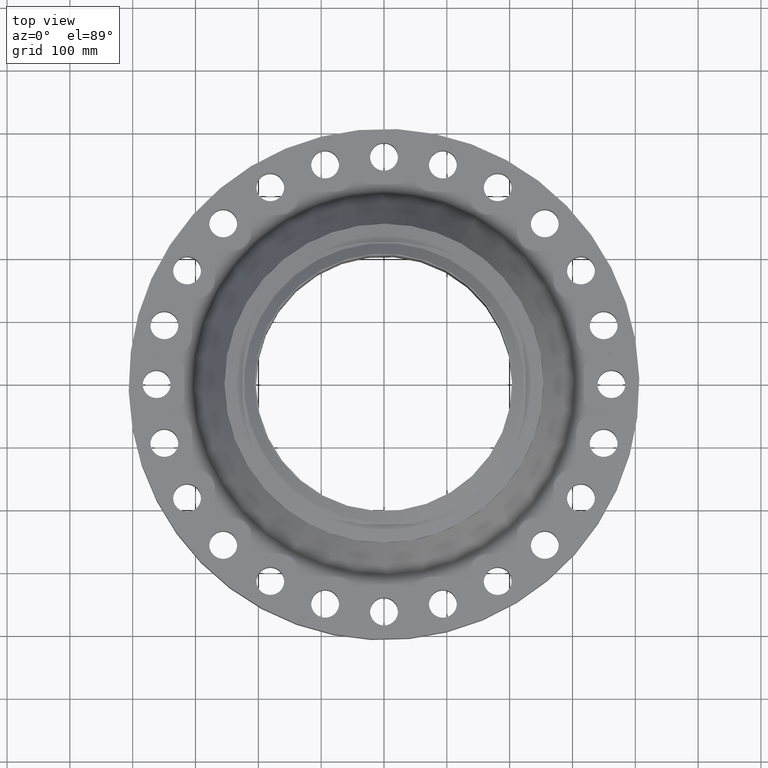
[diagram: clean part render]
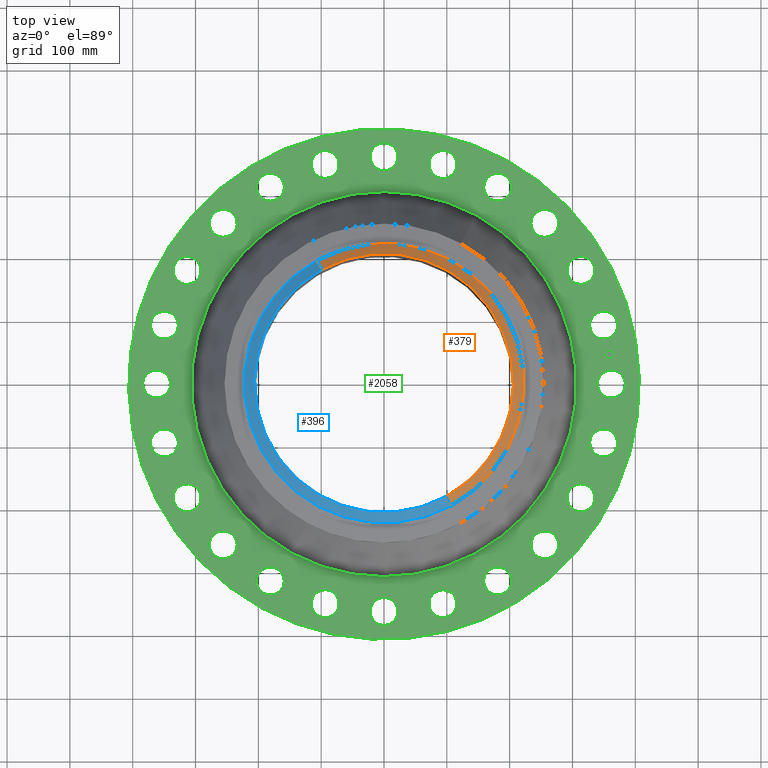
[diagram: same view with three faces highlighted in distinct colors, each labeled with its STEP entity id]
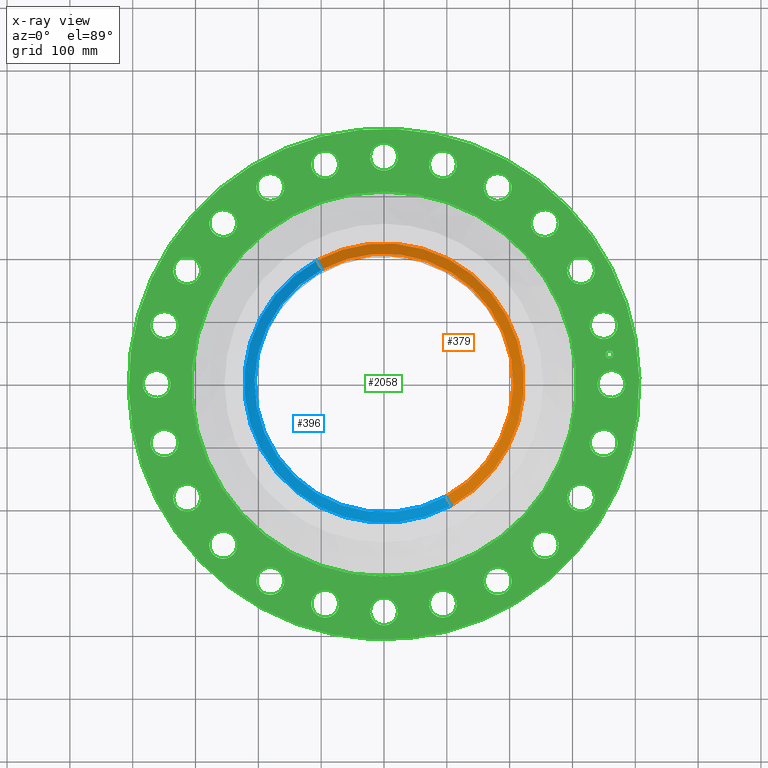
[diagram: x-ray of the same camera — body ghosted, the three highlighted faces saturated]
A machine part, top view with three faces highlighted in distinct colors.
The next image is the same camera in x-ray (body ghosted, the three faces saturated) — at least one of them is partly hidden behind the body in this view.
Their STEP definitions:

[orange] entity #379 — the highlighted conical surface has half-angle 52.5 deg.
#343=AXIS2_PLACEMENT_3D('Cone Axis2P3D',#340,#341,#342) ;
#347=AXIS2_PLACEMENT_3D('Circle Axis2P3D',#345,#346,$) ;
#363=AXIS2_PLACEMENT_3D('Circle Axis2P3D',#361,#362,$) ;
#340=CARTESIAN_POINT('Axis2P3D Location',(0.,0.,7.50000000003)) ;
#345=CARTESIAN_POINT('Axis2P3D Location',(0.,0.,7.50000000003)) ;
#349=CARTESIAN_POINT('Vertex',(3.88801654296,-7.11696654369,7.50000000003)) ;
#351=CARTESIAN_POINT('Vertex',(-3.88801654296,7.11696654369,7.50000000003)) ;
#354=CARTESIAN_POINT('Line Origine',(4.04295784551,-7.4005846956,7.25201437259)) ;
#358=CARTESIAN_POINT('Vertex',(4.19789914806,-7.6842028475,7.00402874516)) ;
#361=CARTESIAN_POINT('Axis2P3D Location',(0.,0.,7.00402874516)) ;
#365=CARTESIAN_POINT('Vertex',(-4.19789914806,7.6842028475,7.00402874516)) ;
#368=CARTESIAN_POINT('Line Origine',(-4.04295784551,7.4005846956,7.25201437259)) ;
#341=DIRECTION('Axis2P3D Direction',(-0.,-0.,-0.0393700787402)) ;
#342=DIRECTION('Axis2P3D XDirection',(0.0188750212049,-0.0345504945626,0.)) ;
#346=DIRECTION('Axis2P3D Direction',(0.,0.,-0.0393700787402)) ;
#355=DIRECTION('Vector Direction',(0.014974561121,-0.02741075027,-0.023966985394)) ;
#362=DIRECTION('Axis2P3D Direction',(0.,0.,-0.0393700787402)) ;
#369=DIRECTION('Vector Direction',(-0.014974561121,0.02741075027,-0.023966985394)) ;
#356=VECTOR('Line Direction',#355,0.0393700787402) ;
#370=VECTOR('Line Direction',#369,0.0393700787402) ;
#374=ORIENTED_EDGE('',*,*,#353,.F.) ;
#375=ORIENTED_EDGE('',*,*,#360,.T.) ;
#376=ORIENTED_EDGE('',*,*,#367,.T.) ;
#377=ORIENTED_EDGE('',*,*,#372,.F.) ;
#379=ADVANCED_FACE('PartBody',(#378),#344,.T.) ;
#348=CIRCLE('generated circle',#347,8.10974015751) ;
#364=CIRCLE('generated circle',#363,8.75610248106) ;
#344=CONICAL_SURFACE('Cone',#343,8.10974015751,0.916297857297) ;
#353=EDGE_CURVE('',#350,#352,#348,.F.) ;
#360=EDGE_CURVE('',#350,#359,#357,.T.) ;
#367=EDGE_CURVE('',#359,#366,#364,.F.) ;
#372=EDGE_CURVE('',#352,#366,#371,.T.) ;
#373=EDGE_LOOP('',(#374,#375,#376,#377)) ;
#378=FACE_OUTER_BOUND('',#373,.T.) ;
#357=LINE('Line',#354,#356) ;
#371=LINE('Line',#368,#370) ;
#350=VERTEX_POINT('',#349) ;
#352=VERTEX_POINT('',#351) ;
#359=VERTEX_POINT('',#358) ;
#366=VERTEX_POINT('',#365) ;

[blue] entity #396 — the highlighted conical surface has half-angle 52.5 deg.
#343=AXIS2_PLACEMENT_3D('Cone Axis2P3D',#340,#341,#342) ;
#382=AXIS2_PLACEMENT_3D('Circle Axis2P3D',#380,#381,$) ;
#387=AXIS2_PLACEMENT_3D('Circle Axis2P3D',#385,#386,$) ;
#340=CARTESIAN_POINT('Axis2P3D Location',(0.,0.,7.50000000003)) ;
#349=CARTESIAN_POINT('Vertex',(3.88801654296,-7.11696654369,7.50000000003)) ;
#351=CARTESIAN_POINT('Vertex',(-3.88801654296,7.11696654369,7.50000000003)) ;
#354=CARTESIAN_POINT('Line Origine',(4.04295784551,-7.4005846956,7.25201437259)) ;
#358=CARTESIAN_POINT('Vertex',(4.19789914806,-7.6842028475,7.00402874516)) ;
#365=CARTESIAN_POINT('Vertex',(-4.19789914806,7.6842028475,7.00402874516)) ;
#368=CARTESIAN_POINT('Line Origine',(-4.04295784551,7.4005846956,7.25201437259)) ;
#380=CARTESIAN_POINT('Axis2P3D Location',(0.,0.,7.50000000003)) ;
#385=CARTESIAN_POINT('Axis2P3D Location',(0.,0.,7.00402874516)) ;
#341=DIRECTION('Axis2P3D Direction',(-0.,-0.,-0.0393700787402)) ;
#342=DIRECTION('Axis2P3D XDirection',(0.0188750212049,-0.0345504945626,0.)) ;
#355=DIRECTION('Vector Direction',(0.014974561121,-0.02741075027,-0.023966985394)) ;
#369=DIRECTION('Vector Direction',(-0.014974561121,0.02741075027,-0.023966985394)) ;
#381=DIRECTION('Axis2P3D Direction',(0.,0.,-0.0393700787402)) ;
#386=DIRECTION('Axis2P3D Direction',(0.,0.,-0.0393700787402)) ;
#356=VECTOR('Line Direction',#355,0.0393700787402) ;
#370=VECTOR('Line Direction',#369,0.0393700787402) ;
#391=ORIENTED_EDGE('',*,*,#384,.F.) ;
#392=ORIENTED_EDGE('',*,*,#372,.T.) ;
#393=ORIENTED_EDGE('',*,*,#389,.T.) ;
#394=ORIENTED_EDGE('',*,*,#360,.F.) ;
#396=ADVANCED_FACE('PartBody',(#395),#344,.T.) ;
#383=CIRCLE('generated circle',#382,8.10974015751) ;
#388=CIRCLE('generated circle',#387,8.75610248106) ;
#344=CONICAL_SURFACE('Cone',#343,8.10974015751,0.916297857297) ;
#360=EDGE_CURVE('',#350,#359,#357,.T.) ;
#372=EDGE_CURVE('',#352,#366,#371,.T.) ;
#384=EDGE_CURVE('',#352,#350,#383,.F.) ;
#389=EDGE_CURVE('',#366,#359,#388,.F.) ;
#390=EDGE_LOOP('',(#391,#392,#393,#394)) ;
#395=FACE_OUTER_BOUND('',#390,.T.) ;
#357=LINE('Line',#354,#356) ;
#371=LINE('Line',#368,#370) ;
#350=VERTEX_POINT('',#349) ;
#352=VERTEX_POINT('',#351) ;
#359=VERTEX_POINT('',#358) ;
#366=VERTEX_POINT('',#365) ;

[green] entity #2058 — the highlighted planar face has unit normal (0, 0, -1).
#65=AXIS2_PLACEMENT_3D('Circle Axis2P3D',#63,#64,$) ;
#82=AXIS2_PLACEMENT_3D('Circle Axis2P3D',#80,#81,$) ;
#115=AXIS2_PLACEMENT_3D('Circle Axis2P3D',#113,#114,$) ;
#139=AXIS2_PLACEMENT_3D('Circle Axis2P3D',#137,#138,$) ;
#156=AXIS2_PLACEMENT_3D('Circle Axis2P3D',#154,#155,$) ;
#191=AXIS2_PLACEMENT_3D('Circle Axis2P3D',#189,#190,$) ;
#963=AXIS2_PLACEMENT_3D('Circle Axis2P3D',#961,#962,$) ;
#975=AXIS2_PLACEMENT_3D('Circle Axis2P3D',#973,#974,$) ;
#1006=AXIS2_PLACEMENT_3D('Circle Axis2P3D',#1004,#1005,$) ;
#1018=AXIS2_PLACEMENT_3D('Circle Axis2P3D',#1016,#1017,$) ;
#1049=AXIS2_PLACEMENT_3D('Circle Axis2P3D',#1047,#1048,$) ;
#1061=AXIS2_PLACEMENT_3D('Circle Axis2P3D',#1059,#1060,$) ;
#1092=AXIS2_PLACEMENT_3D('Circle Axis2P3D',#1090,#1091,$) ;
#1104=AXIS2_PLACEMENT_3D('Circle Axis2P3D',#1102,#1103,$) ;
#1135=AXIS2_PLACEMENT_3D('Circle Axis2P3D',#1133,#1134,$) ;
#1147=AXIS2_PLACEMENT_3D('Circle Axis2P3D',#1145,#1146,$) ;
#1178=AXIS2_PLACEMENT_3D('Circle Axis2P3D',#1176,#1177,$) ;
#1190=AXIS2_PLACEMENT_3D('Circle Axis2P3D',#1188,#1189,$) ;
#1221=AXIS2_PLACEMENT_3D('Circle Axis2P3D',#1219,#1220,$) ;
#1233=AXIS2_PLACEMENT_3D('Circle Axis2P3D',#1231,#1232,$) ;
#1264=AXIS2_PLACEMENT_3D('Circle Axis2P3D',#1262,#1263,$) ;
#1276=AXIS2_PLACEMENT_3D('Circle Axis2P3D',#1274,#1275,$) ;
#1307=AXIS2_PLACEMENT_3D('Circle Axis2P3D',#1305,#1306,$) ;
#1319=AXIS2_PLACEMENT_3D('Circle Axis2P3D',#1317,#1318,$) ;
#1350=AXIS2_PLACEMENT_3D('Circle Axis2P3D',#1348,#1349,$) ;
#1362=AXIS2_PLACEMENT_3D('Circle Axis2P3D',#1360,#1361,$) ;
#1393=AXIS2_PLACEMENT_3D('Circle Axis2P3D',#1391,#1392,$) ;
#1405=AXIS2_PLACEMENT_3D('Circle Axis2P3D',#1403,#1404,$) ;
#1436=AXIS2_PLACEMENT_3D('Circle Axis2P3D',#1434,#1435,$) ;
#1448=AXIS2_PLACEMENT_3D('Circle Axis2P3D',#1446,#1447,$) ;
#1479=AXIS2_PLACEMENT_3D('Circle Axis2P3D',#1477,#1478,$) ;
#1491=AXIS2_PLACEMENT_3D('Circle Axis2P3D',#1489,#1490,$) ;
#1522=AXIS2_PLACEMENT_3D('Circle Axis2P3D',#1520,#1521,$) ;
#1534=AXIS2_PLACEMENT_3D('Circle Axis2P3D',#1532,#1533,$) ;
#1565=AXIS2_PLACEMENT_3D('Circle Axis2P3D',#1563,#1564,$) ;
#1577=AXIS2_PLACEMENT_3D('Circle Axis2P3D',#1575,#1576,$) ;
#1608=AXIS2_PLACEMENT_3D('Circle Axis2P3D',#1606,#1607,$) ;
#1620=AXIS2_PLACEMENT_3D('Circle Axis2P3D',#1618,#1619,$) ;
#1651=AXIS2_PLACEMENT_3D('Circle Axis2P3D',#1649,#1650,$) ;
#1663=AXIS2_PLACEMENT_3D('Circle Axis2P3D',#1661,#1662,$) ;
#1694=AXIS2_PLACEMENT_3D('Circle Axis2P3D',#1692,#1693,$) ;
#1706=AXIS2_PLACEMENT_3D('Circle Axis2P3D',#1704,#1705,$) ;
#1737=AXIS2_PLACEMENT_3D('Circle Axis2P3D',#1735,#1736,$) ;
#1749=AXIS2_PLACEMENT_3D('Circle Axis2P3D',#1747,#1748,$) ;
#1780=AXIS2_PLACEMENT_3D('Circle Axis2P3D',#1778,#1779,$) ;
#1792=AXIS2_PLACEMENT_3D('Circle Axis2P3D',#1790,#1791,$) ;
#1823=AXIS2_PLACEMENT_3D('Circle Axis2P3D',#1821,#1822,$) ;
#1835=AXIS2_PLACEMENT_3D('Circle Axis2P3D',#1833,#1834,$) ;
#1866=AXIS2_PLACEMENT_3D('Circle Axis2P3D',#1864,#1865,$) ;
#1878=AXIS2_PLACEMENT_3D('Circle Axis2P3D',#1876,#1877,$) ;
#1909=AXIS2_PLACEMENT_3D('Circle Axis2P3D',#1907,#1908,$) ;
#1921=AXIS2_PLACEMENT_3D('Circle Axis2P3D',#1919,#1920,$) ;
#1934=AXIS2_PLACEMENT_3D('Plane Axis2P3D',#1931,#1932,#1933) ;
#2042=AXIS2_PLACEMENT_3D('Circle Axis2P3D',#2040,#2041,$) ;
#2051=AXIS2_PLACEMENT_3D('Circle Axis2P3D',#2049,#2050,$) ;
#46=CARTESIAN_POINT('Vertex',(13.4821152584,0.41949734628,3.50000000001)) ;
#60=CARTESIAN_POINT('Vertex',(15.0178847417,-0.41949734628,3.50000000001)) ;
#63=CARTESIAN_POINT('Axis2P3D Location',(14.2500000001,0.,3.50000000001)) ;
#80=CARTESIAN_POINT('Axis2P3D Location',(14.2500000001,0.,3.50000000001)) ;
#110=CARTESIAN_POINT('Vertex',(-7.6708086177,-14.0413209903,3.50000000001)) ;
#113=CARTESIAN_POINT('Axis2P3D Location',(0.,0.,3.50000000001)) ;
#117=CARTESIAN_POINT('Vertex',(7.6708086177,14.0413209903,3.50000000001)) ;
#137=CARTESIAN_POINT('Axis2P3D Location',(0.,0.,3.50000000001)) ;
#154=CARTESIAN_POINT('Axis2P3D Location',(0.,0.,3.50000000001)) ;
#158=CARTESIAN_POINT('Vertex',(5.78409367127,10.5877124465,3.50000000001)) ;
#160=CARTESIAN_POINT('Vertex',(-5.78409367127,-10.5877124465,3.50000000001)) ;
#189=CARTESIAN_POINT('Axis2P3D Location',(0.,0.,3.50000000001)) ;
#951=CARTESIAN_POINT('Vertex',(-13.1312972237,3.08422487631,3.50000000001)) ;
#958=CARTESIAN_POINT('Vertex',(-14.3975888257,4.29211790914,3.50000000001)) ;
#961=CARTESIAN_POINT('Axis2P3D Location',(-13.7644430247,3.68817139273,3.50000000001)) ;
#973=CARTESIAN_POINT('Axis2P3D Location',(-13.7644430247,3.68817139273,3.50000000001)) ;
#994=CARTESIAN_POINT('Vertex',(11.8856029837,-6.3777622705,3.50000000001)) ;
#1001=CARTESIAN_POINT('Vertex',(12.7961210243,-7.87223772956,3.50000000001)) ;
#1004=CARTESIAN_POINT('Axis2P3D Location',(12.340862004,-7.12500000003,3.50000000001)) ;
#1016=CARTESIAN_POINT('Axis2P3D Location',(12.340862004,-7.12500000003,3.50000000001)) ;
#1037=CARTESIAN_POINT('Vertex',(-11.8856029837,6.3777622705,3.50000000001)) ;
#1044=CARTESIAN_POINT('Vertex',(-12.7961210243,7.87223772956,3.50000000001)) ;
#1047=CARTESIAN_POINT('Axis2P3D Location',(-12.340862004,7.12500000003,3.50000000001)) ;
#1059=CARTESIAN_POINT('Axis2P3D Location',(-12.340862004,7.12500000003,3.50000000001)) ;
#1080=CARTESIAN_POINT('Vertex',(9.8299245422,-9.23666570571,3.50000000001)) ;
#1087=CARTESIAN_POINT('Vertex',(10.3226187217,-10.9158775582,3.50000000001)) ;
#1090=CARTESIAN_POINT('Axis2P3D Location',(10.0762716319,-10.0762716319,3.50000000001)) ;
#1102=CARTESIAN_POINT('Axis2P3D Location',(10.0762716319,-10.0762716319,3.50000000001)) ;
#1123=CARTESIAN_POINT('Vertex',(-9.8299245422,9.23666570571,3.50000000001)) ;
#1130=CARTESIAN_POINT('Vertex',(-10.3226187217,10.9158775582,3.50000000001)) ;
#1133=CARTESIAN_POINT('Axis2P3D Location',(-10.0762716319,10.0762716319,3.50000000001)) ;
#1145=CARTESIAN_POINT('Axis2P3D Location',(-10.0762716319,10.0762716319,3.50000000001)) ;
#1166=CARTESIAN_POINT('Vertex',(7.1043529879,-11.4661056374,3.50000000001)) ;
#1173=CARTESIAN_POINT('Vertex',(7.14564701216,-13.2156183706,3.50000000001)) ;
#1176=CARTESIAN_POINT('Axis2P3D Location',(7.12500000003,-12.340862004,3.50000000001)) ;
#1188=CARTESIAN_POINT('Axis2P3D Location',(7.12500000003,-12.340862004,3.50000000001)) ;
#1209=CARTESIAN_POINT('Vertex',(-7.1043529879,11.4661056374,3.50000000001)) ;
#1216=CARTESIAN_POINT('Vertex',(-7.14564701216,13.2156183706,3.50000000001)) ;
#1219=CARTESIAN_POINT('Axis2P3D Location',(-7.12500000003,12.340862004,3.50000000001)) ;
#1231=CARTESIAN_POINT('Axis2P3D Location',(-7.12500000003,12.340862004,3.50000000001)) ;
#1252=CARTESIAN_POINT('Vertex',(3.89463151797,-12.9141494185,3.50000000001)) ;
#1259=CARTESIAN_POINT('Vertex',(3.48171126748,-14.6147366308,3.50000000001)) ;
#1262=CARTESIAN_POINT('Axis2P3D Location',(3.68817139273,-13.7644430247,3.50000000001)) ;
#1274=CARTESIAN_POINT('Axis2P3D Location',(3.68817139273,-13.7644430247,3.50000000001)) ;
#1295=CARTESIAN_POINT('Vertex',(-3.89463151797,12.9141494185,3.50000000001)) ;
#1302=CARTESIAN_POINT('Vertex',(-3.48171126748,14.6147366308,3.50000000001)) ;
#1305=CARTESIAN_POINT('Axis2P3D Location',(-3.68817139273,13.7644430247,3.50000000001)) ;
#1317=CARTESIAN_POINT('Axis2P3D Location',(-3.68817139273,13.7644430247,3.50000000001)) ;
#1338=CARTESIAN_POINT('Vertex',(0.41949734628,-13.4821152584,3.50000000001)) ;
#1345=CARTESIAN_POINT('Vertex',(-0.41949734628,-15.0178847417,3.50000000001)) ;
#1348=CARTESIAN_POINT('Axis2P3D Location',(-1.36536903201E-015,-14.2500000001,3.50000000001)) ;
#1360=CARTESIAN_POINT('Axis2P3D Location',(-1.36536903201E-015,-14.2500000001,3.50000000001)) ;
#1381=CARTESIAN_POINT('Vertex',(-0.41949734628,13.4821152584,3.50000000001)) ;
#1388=CARTESIAN_POINT('Vertex',(0.41949734628,15.0178847417,3.50000000001)) ;
#1391=CARTESIAN_POINT('Axis2P3D Location',(-2.61768253319E-015,14.2500000001,3.50000000001)) ;
#1403=CARTESIAN_POINT('Axis2P3D Location',(-2.61768253319E-015,14.2500000001,3.50000000001)) ;
#1424=CARTESIAN_POINT('Vertex',(-3.08422487631,-13.1312972237,3.50000000001)) ;
#1431=CARTESIAN_POINT('Vertex',(-4.29211790914,-14.3975888257,3.50000000001)) ;
#1434=CARTESIAN_POINT('Axis2P3D Location',(-3.68817139273,-13.7644430247,3.50000000001)) ;
#1446=CARTESIAN_POINT('Axis2P3D Location',(-3.68817139273,-13.7644430247,3.50000000001)) ;
#1467=CARTESIAN_POINT('Vertex',(3.08422487631,13.1312972237,3.50000000001)) ;
#1474=CARTESIAN_POINT('Vertex',(4.29211790914,14.3975888257,3.50000000001)) ;
#1477=CARTESIAN_POINT('Axis2P3D Location',(3.68817139273,13.7644430247,3.50000000001)) ;
#1489=CARTESIAN_POINT('Axis2P3D Location',(3.68817139273,13.7644430247,3.50000000001)) ;
#1510=CARTESIAN_POINT('Vertex',(-6.3777622705,-11.8856029837,3.50000000001)) ;
#1517=CARTESIAN_POINT('Vertex',(-7.87223772956,-12.7961210243,3.50000000001)) ;
#1520=CARTESIAN_POINT('Axis2P3D Location',(-7.12500000003,-12.340862004,3.50000000001)) ;
#1532=CARTESIAN_POINT('Axis2P3D Location',(-7.12500000003,-12.340862004,3.50000000001)) ;
#1553=CARTESIAN_POINT('Vertex',(6.3777622705,11.8856029837,3.50000000001)) ;
#1560=CARTESIAN_POINT('Vertex',(7.87223772956,12.7961210243,3.50000000001)) ;
#1563=CARTESIAN_POINT('Axis2P3D Location',(7.12500000003,12.340862004,3.50000000001)) ;
#1575=CARTESIAN_POINT('Axis2P3D Location',(7.12500000003,12.340862004,3.50000000001)) ;
#1596=CARTESIAN_POINT('Vertex',(-9.23666570571,-9.8299245422,3.50000000001)) ;
#1603=CARTESIAN_POINT('Vertex',(-10.9158775582,-10.3226187217,3.50000000001)) ;
#1606=CARTESIAN_POINT('Axis2P3D Location',(-10.0762716319,-10.0762716319,3.50000000001)) ;
#1618=CARTESIAN_POINT('Axis2P3D Location',(-10.0762716319,-10.0762716319,3.50000000001)) ;
#1639=CARTESIAN_POINT('Vertex',(9.23666570571,9.8299245422,3.50000000001)) ;
#1646=CARTESIAN_POINT('Vertex',(10.9158775582,10.3226187217,3.50000000001)) ;
#1649=CARTESIAN_POINT('Axis2P3D Location',(10.0762716319,10.0762716319,3.50000000001)) ;
#1661=CARTESIAN_POINT('Axis2P3D Location',(10.0762716319,10.0762716319,3.50000000001)) ;
#1682=CARTESIAN_POINT('Vertex',(-11.4661056374,-7.1043529879,3.50000000001)) ;
#1689=CARTESIAN_POINT('Vertex',(-13.2156183706,-7.14564701216,3.50000000001)) ;
#1692=CARTESIAN_POINT('Axis2P3D Location',(-12.340862004,-7.12500000003,3.50000000001)) ;
#1704=CARTESIAN_POINT('Axis2P3D Location',(-12.340862004,-7.12500000003,3.50000000001)) ;
#1725=CARTESIAN_POINT('Vertex',(11.4661056374,7.1043529879,3.50000000001)) ;
#1732=CARTESIAN_POINT('Vertex',(13.2156183706,7.14564701216,3.50000000001)) ;
#1735=CARTESIAN_POINT('Axis2P3D Location',(12.340862004,7.12500000003,3.50000000001)) ;
#1747=CARTESIAN_POINT('Axis2P3D Location',(12.340862004,7.12500000003,3.50000000001)) ;
#1768=CARTESIAN_POINT('Vertex',(-12.9141494185,-3.89463151797,3.50000000001)) ;
#1775=CARTESIAN_POINT('Vertex',(-14.6147366308,-3.48171126748,3.50000000001)) ;
#1778=CARTESIAN_POINT('Axis2P3D Location',(-13.7644430247,-3.68817139273,3.50000000001)) ;
#1790=CARTESIAN_POINT('Axis2P3D Location',(-13.7644430247,-3.68817139273,3.50000000001)) ;
#1811=CARTESIAN_POINT('Vertex',(12.9141494185,3.89463151797,3.50000000001)) ;
#1818=CARTESIAN_POINT('Vertex',(14.6147366308,3.48171126748,3.50000000001)) ;
#1821=CARTESIAN_POINT('Axis2P3D Location',(13.7644430247,3.68817139273,3.50000000001)) ;
#1833=CARTESIAN_POINT('Axis2P3D Location',(13.7644430247,3.68817139273,3.50000000001)) ;
#1854=CARTESIAN_POINT('Vertex',(-13.4821152584,-0.41949734628,3.50000000001)) ;
#1861=CARTESIAN_POINT('Vertex',(-15.0178847417,0.41949734628,3.50000000001)) ;
#1864=CARTESIAN_POINT('Axis2P3D Location',(-14.2500000001,-1.74512168879E-015,3.50000000001)) ;
#1876=CARTESIAN_POINT('Axis2P3D Location',(-14.2500000001,-1.74512168879E-015,3.50000000001)) ;
#1897=CARTESIAN_POINT('Vertex',(13.1312972237,-3.08422487631,3.50000000001)) ;
#1904=CARTESIAN_POINT('Vertex',(14.3975888257,-4.29211790914,3.50000000001)) ;
#1907=CARTESIAN_POINT('Axis2P3D Location',(13.7644430247,-3.68817139273,3.50000000001)) ;
#1919=CARTESIAN_POINT('Axis2P3D Location',(13.7644430247,-3.68817139273,3.50000000001)) ;
#1931=CARTESIAN_POINT('Axis2P3D Location',(0.,16.0000000001,3.50000000001)) ;
#2040=CARTESIAN_POINT('Axis2P3D Location',(14.1280892746,1.85999823914,3.50000000001)) ;
#2044=CARTESIAN_POINT('Vertex',(14.0957840421,2.10538084233,3.50000000001)) ;
#2046=CARTESIAN_POINT('Vertex',(14.1603945072,1.61461563595,3.50000000001)) ;
#2049=CARTESIAN_POINT('Axis2P3D Location',(14.1280892746,1.85999823914,3.50000000001)) ;
#64=DIRECTION('Axis2P3D Direction',(0.,-0.,-0.0393700787402)) ;
#81=DIRECTION('Axis2P3D Direction',(0.,-0.,-0.0393700787402)) ;
#114=DIRECTION('Axis2P3D Direction',(0.,0.,-0.0393700787402)) ;
#138=DIRECTION('Axis2P3D Direction',(0.,0.,-0.0393700787402)) ;
#155=DIRECTION('Axis2P3D Direction',(0.,0.,-0.0393700787402)) ;
#190=DIRECTION('Axis2P3D Direction',(0.,0.,-0.0393700787402)) ;
#962=DIRECTION('Axis2P3D Direction',(0.,0.,-0.0393700787402)) ;
#974=DIRECTION('Axis2P3D Direction',(0.,0.,-0.0393700787402)) ;
#1005=DIRECTION('Axis2P3D Direction',(0.,-0.,-0.0393700787402)) ;
#1017=DIRECTION('Axis2P3D Direction',(0.,-0.,-0.0393700787402)) ;
#1048=DIRECTION('Axis2P3D Direction',(0.,0.,-0.0393700787402)) ;
#1060=DIRECTION('Axis2P3D Direction',(0.,0.,-0.0393700787402)) ;
#1091=DIRECTION('Axis2P3D Direction',(0.,-0.,-0.0393700787402)) ;
#1103=DIRECTION('Axis2P3D Direction',(0.,-0.,-0.0393700787402)) ;
#1134=DIRECTION('Axis2P3D Direction',(0.,0.,-0.0393700787402)) ;
#1146=DIRECTION('Axis2P3D Direction',(0.,0.,-0.0393700787402)) ;
#1177=DIRECTION('Axis2P3D Direction',(0.,-0.,-0.0393700787402)) ;
#1189=DIRECTION('Axis2P3D Direction',(0.,-0.,-0.0393700787402)) ;
#1220=DIRECTION('Axis2P3D Direction',(0.,0.,-0.0393700787402)) ;
#1232=DIRECTION('Axis2P3D Direction',(0.,0.,-0.0393700787402)) ;
#1263=DIRECTION('Axis2P3D Direction',(0.,-0.,-0.0393700787402)) ;
#1275=DIRECTION('Axis2P3D Direction',(0.,-0.,-0.0393700787402)) ;
#1306=DIRECTION('Axis2P3D Direction',(0.,0.,-0.0393700787402)) ;
#1318=DIRECTION('Axis2P3D Direction',(0.,0.,-0.0393700787402)) ;
#1349=DIRECTION('Axis2P3D Direction',(0.,-0.,-0.0393700787402)) ;
#1361=DIRECTION('Axis2P3D Direction',(0.,-0.,-0.0393700787402)) ;
#1392=DIRECTION('Axis2P3D Direction',(0.,0.,-0.0393700787402)) ;
#1404=DIRECTION('Axis2P3D Direction',(0.,0.,-0.0393700787402)) ;
#1435=DIRECTION('Axis2P3D Direction',(-0.,0.,-0.0393700787402)) ;
#1447=DIRECTION('Axis2P3D Direction',(-0.,0.,-0.0393700787402)) ;
#1478=DIRECTION('Axis2P3D Direction',(0.,0.,-0.0393700787402)) ;
#1490=DIRECTION('Axis2P3D Direction',(0.,0.,-0.0393700787402)) ;
#1521=DIRECTION('Axis2P3D Direction',(-0.,0.,-0.0393700787402)) ;
#1533=DIRECTION('Axis2P3D Direction',(-0.,0.,-0.0393700787402)) ;
#1564=DIRECTION('Axis2P3D Direction',(0.,0.,-0.0393700787402)) ;
#1576=DIRECTION('Axis2P3D Direction',(0.,0.,-0.0393700787402)) ;
#1607=DIRECTION('Axis2P3D Direction',(-0.,0.,-0.0393700787402)) ;
#1619=DIRECTION('Axis2P3D Direction',(-0.,0.,-0.0393700787402)) ;
#1650=DIRECTION('Axis2P3D Direction',(0.,0.,-0.0393700787402)) ;
#1662=DIRECTION('Axis2P3D Direction',(0.,0.,-0.0393700787402)) ;
#1693=DIRECTION('Axis2P3D Direction',(-0.,0.,-0.0393700787402)) ;
#1705=DIRECTION('Axis2P3D Direction',(-0.,0.,-0.0393700787402)) ;
#1736=DIRECTION('Axis2P3D Direction',(0.,0.,-0.0393700787402)) ;
#1748=DIRECTION('Axis2P3D Direction',(0.,0.,-0.0393700787402)) ;
#1779=DIRECTION('Axis2P3D Direction',(-0.,0.,-0.0393700787402)) ;
#1791=DIRECTION('Axis2P3D Direction',(-0.,0.,-0.0393700787402)) ;
#1822=DIRECTION('Axis2P3D Direction',(0.,0.,-0.0393700787402)) ;
#1834=DIRECTION('Axis2P3D Direction',(0.,0.,-0.0393700787402)) ;
#1865=DIRECTION('Axis2P3D Direction',(-0.,0.,-0.0393700787402)) ;
#1877=DIRECTION('Axis2P3D Direction',(-0.,0.,-0.0393700787402)) ;
#1908=DIRECTION('Axis2P3D Direction',(0.,-0.,-0.0393700787402)) ;
#1920=DIRECTION('Axis2P3D Direction',(0.,-0.,-0.0393700787402)) ;
#1932=DIRECTION('Axis2P3D Direction',(0.,0.,-0.0393700787402)) ;
#1933=DIRECTION('Axis2P3D XDirection',(0.0393700787402,0.,0.)) ;
#2041=DIRECTION('Axis2P3D Direction',(0.,0.,-0.0393700787402)) ;
#2050=DIRECTION('Axis2P3D Direction',(0.,0.,-0.0393700787402)) ;
#1937=ORIENTED_EDGE('',*,*,#141,.F.) ;
#1938=ORIENTED_EDGE('',*,*,#119,.F.) ;
#1941=ORIENTED_EDGE('',*,*,#67,.T.) ;
#1942=ORIENTED_EDGE('',*,*,#84,.T.) ;
#1945=ORIENTED_EDGE('',*,*,#193,.T.) ;
#1946=ORIENTED_EDGE('',*,*,#162,.T.) ;
#1949=ORIENTED_EDGE('',*,*,#1923,.T.) ;
#1950=ORIENTED_EDGE('',*,*,#1911,.T.) ;
#1953=ORIENTED_EDGE('',*,*,#1020,.T.) ;
#1954=ORIENTED_EDGE('',*,*,#1008,.T.) ;
#1957=ORIENTED_EDGE('',*,*,#1106,.T.) ;
#1958=ORIENTED_EDGE('',*,*,#1094,.T.) ;
#1961=ORIENTED_EDGE('',*,*,#1192,.T.) ;
#1962=ORIENTED_EDGE('',*,*,#1180,.T.) ;
#1965=ORIENTED_EDGE('',*,*,#1278,.T.) ;
#1966=ORIENTED_EDGE('',*,*,#1266,.T.) ;
#1969=ORIENTED_EDGE('',*,*,#1364,.T.) ;
#1970=ORIENTED_EDGE('',*,*,#1352,.T.) ;
#1973=ORIENTED_EDGE('',*,*,#1450,.T.) ;
#1974=ORIENTED_EDGE('',*,*,#1438,.T.) ;
#1977=ORIENTED_EDGE('',*,*,#1536,.T.) ;
#1978=ORIENTED_EDGE('',*,*,#1524,.T.) ;
#1981=ORIENTED_EDGE('',*,*,#1622,.T.) ;
#1982=ORIENTED_EDGE('',*,*,#1610,.T.) ;
#1985=ORIENTED_EDGE('',*,*,#1708,.T.) ;
#1986=ORIENTED_EDGE('',*,*,#1696,.T.) ;
#1989=ORIENTED_EDGE('',*,*,#1794,.T.) ;
#1990=ORIENTED_EDGE('',*,*,#1782,.T.) ;
#1993=ORIENTED_EDGE('',*,*,#1880,.T.) ;
#1994=ORIENTED_EDGE('',*,*,#1868,.T.) ;
#1997=ORIENTED_EDGE('',*,*,#977,.T.) ;
#1998=ORIENTED_EDGE('',*,*,#965,.T.) ;
#2001=ORIENTED_EDGE('',*,*,#1063,.T.) ;
#2002=ORIENTED_EDGE('',*,*,#1051,.T.) ;
#2005=ORIENTED_EDGE('',*,*,#1149,.T.) ;
#2006=ORIENTED_EDGE('',*,*,#1137,.T.) ;
#2009=ORIENTED_EDGE('',*,*,#1235,.T.) ;
#2010=ORIENTED_EDGE('',*,*,#1223,.T.) ;
#2013=ORIENTED_EDGE('',*,*,#1321,.T.) ;
#2014=ORIENTED_EDGE('',*,*,#1309,.T.) ;
#2017=ORIENTED_EDGE('',*,*,#1407,.T.) ;
#2018=ORIENTED_EDGE('',*,*,#1395,.T.) ;
#2021=ORIENTED_EDGE('',*,*,#1493,.T.) ;
#2022=ORIENTED_EDGE('',*,*,#1481,.T.) ;
#2025=ORIENTED_EDGE('',*,*,#1579,.T.) ;
#2026=ORIENTED_EDGE('',*,*,#1567,.T.) ;
#2029=ORIENTED_EDGE('',*,*,#1665,.T.) ;
#2030=ORIENTED_EDGE('',*,*,#1653,.T.) ;
#2033=ORIENTED_EDGE('',*,*,#1751,.T.) ;
#2034=ORIENTED_EDGE('',*,*,#1739,.T.) ;
#2037=ORIENTED_EDGE('',*,*,#1837,.T.) ;
#2038=ORIENTED_EDGE('',*,*,#1825,.T.) ;
#2055=ORIENTED_EDGE('',*,*,#2048,.T.) ;
#2056=ORIENTED_EDGE('',*,*,#2053,.T.) ;
#1943=FACE_BOUND('',#1940,.T.) ;
#1947=FACE_BOUND('',#1944,.T.) ;
#1951=FACE_BOUND('',#1948,.T.) ;
#1955=FACE_BOUND('',#1952,.T.) ;
#1959=FACE_BOUND('',#1956,.T.) ;
#1963=FACE_BOUND('',#1960,.T.) ;
#1967=FACE_BOUND('',#1964,.T.) ;
#1971=FACE_BOUND('',#1968,.T.) ;
#1975=FACE_BOUND('',#1972,.T.) ;
#1979=FACE_BOUND('',#1976,.T.) ;
#1983=FACE_BOUND('',#1980,.T.) ;
#1987=FACE_BOUND('',#1984,.T.) ;
#1991=FACE_BOUND('',#1988,.T.) ;
#1995=FACE_BOUND('',#1992,.T.) ;
#1999=FACE_BOUND('',#1996,.T.) ;
#2003=FACE_BOUND('',#2000,.T.) ;
#2007=FACE_BOUND('',#2004,.T.) ;
#2011=FACE_BOUND('',#2008,.T.) ;
#2015=FACE_BOUND('',#2012,.T.) ;
#2019=FACE_BOUND('',#2016,.T.) ;
#2023=FACE_BOUND('',#2020,.T.) ;
#2027=FACE_BOUND('',#2024,.T.) ;
#2031=FACE_BOUND('',#2028,.T.) ;
#2035=FACE_BOUND('',#2032,.T.) ;
#2039=FACE_BOUND('',#2036,.T.) ;
#2057=FACE_BOUND('',#2054,.T.) ;
#2058=ADVANCED_FACE('PartBody',(#1939,#1943,#1947,#1951,#1955,#1959,#1963,#1967,#1971,#1975,#1979,#1983,#1987,#1991,#1995,#1999,#2003,#2007,#2011,#2015,#2019,#2023,#2027,#2031,#2035,#2039,#2057),#1935,.F.) ;
#66=CIRCLE('generated circle',#65,0.875000000004) ;
#83=CIRCLE('generated circle',#82,0.875000000004) ;
#116=CIRCLE('generated circle',#115,16.0000000001) ;
#140=CIRCLE('generated circle',#139,16.0000000001) ;
#157=CIRCLE('generated circle',#156,12.064634037) ;
#192=CIRCLE('generated circle',#191,12.064634037) ;
#964=CIRCLE('generated circle',#963,0.875000000004) ;
#976=CIRCLE('generated circle',#975,0.875000000004) ;
#1007=CIRCLE('generated circle',#1006,0.875000000003) ;
#1019=CIRCLE('generated circle',#1018,0.875000000003) ;
#1050=CIRCLE('generated circle',#1049,0.875000000003) ;
#1062=CIRCLE('generated circle',#1061,0.875000000003) ;
#1093=CIRCLE('generated circle',#1092,0.875000000004) ;
#1105=CIRCLE('generated circle',#1104,0.875000000004) ;
#1136=CIRCLE('generated circle',#1135,0.875000000004) ;
#1148=CIRCLE('generated circle',#1147,0.875000000004) ;
#1179=CIRCLE('generated circle',#1178,0.875000000003) ;
#1191=CIRCLE('generated circle',#1190,0.875000000003) ;
#1222=CIRCLE('generated circle',#1221,0.875000000003) ;
#1234=CIRCLE('generated circle',#1233,0.875000000003) ;
#1265=CIRCLE('generated circle',#1264,0.875000000004) ;
#1277=CIRCLE('generated circle',#1276,0.875000000004) ;
#1308=CIRCLE('generated circle',#1307,0.875000000004) ;
#1320=CIRCLE('generated circle',#1319,0.875000000004) ;
#1351=CIRCLE('generated circle',#1350,0.875000000004) ;
#1363=CIRCLE('generated circle',#1362,0.875000000004) ;
#1394=CIRCLE('generated circle',#1393,0.875000000004) ;
#1406=CIRCLE('generated circle',#1405,0.875000000004) ;
#1437=CIRCLE('generated circle',#1436,0.875000000004) ;
#1449=CIRCLE('generated circle',#1448,0.875000000004) ;
#1480=CIRCLE('generated circle',#1479,0.875000000004) ;
#1492=CIRCLE('generated circle',#1491,0.875000000004) ;
#1523=CIRCLE('generated circle',#1522,0.875000000003) ;
#1535=CIRCLE('generated circle',#1534,0.875000000003) ;
#1566=CIRCLE('generated circle',#1565,0.875000000003) ;
#1578=CIRCLE('generated circle',#1577,0.875000000003) ;
#1609=CIRCLE('generated circle',#1608,0.875000000003) ;
#1621=CIRCLE('generated circle',#1620,0.875000000003) ;
#1652=CIRCLE('generated circle',#1651,0.875000000004) ;
#1664=CIRCLE('generated circle',#1663,0.875000000004) ;
#1695=CIRCLE('generated circle',#1694,0.875000000003) ;
#1707=CIRCLE('generated circle',#1706,0.875000000003) ;
#1738=CIRCLE('generated circle',#1737,0.875000000003) ;
#1750=CIRCLE('generated circle',#1749,0.875000000003) ;
#1781=CIRCLE('generated circle',#1780,0.875000000004) ;
#1793=CIRCLE('generated circle',#1792,0.875000000004) ;
#1824=CIRCLE('generated circle',#1823,0.875000000004) ;
#1836=CIRCLE('generated circle',#1835,0.875000000004) ;
#1867=CIRCLE('generated circle',#1866,0.875000000004) ;
#1879=CIRCLE('generated circle',#1878,0.875000000004) ;
#1910=CIRCLE('generated circle',#1909,0.875000000004) ;
#1922=CIRCLE('generated circle',#1921,0.875000000004) ;
#2043=CIRCLE('generated circle',#2042,0.247500000001) ;
#2052=CIRCLE('generated circle',#2051,0.247500000001) ;
#67=EDGE_CURVE('',#47,#61,#66,.T.) ;
#84=EDGE_CURVE('',#61,#47,#83,.T.) ;
#119=EDGE_CURVE('',#111,#118,#116,.T.) ;
#141=EDGE_CURVE('',#118,#111,#140,.T.) ;
#162=EDGE_CURVE('',#159,#161,#157,.T.) ;
#193=EDGE_CURVE('',#161,#159,#192,.T.) ;
#965=EDGE_CURVE('',#952,#959,#964,.T.) ;
#977=EDGE_CURVE('',#959,#952,#976,.T.) ;
#1008=EDGE_CURVE('',#995,#1002,#1007,.T.) ;
#1020=EDGE_CURVE('',#1002,#995,#1019,.T.) ;
#1051=EDGE_CURVE('',#1038,#1045,#1050,.T.) ;
#1063=EDGE_CURVE('',#1045,#1038,#1062,.T.) ;
#1094=EDGE_CURVE('',#1081,#1088,#1093,.T.) ;
#1106=EDGE_CURVE('',#1088,#1081,#1105,.T.) ;
#1137=EDGE_CURVE('',#1124,#1131,#1136,.T.) ;
#1149=EDGE_CURVE('',#1131,#1124,#1148,.T.) ;
#1180=EDGE_CURVE('',#1167,#1174,#1179,.T.) ;
#1192=EDGE_CURVE('',#1174,#1167,#1191,.T.) ;
#1223=EDGE_CURVE('',#1210,#1217,#1222,.T.) ;
#1235=EDGE_CURVE('',#1217,#1210,#1234,.T.) ;
#1266=EDGE_CURVE('',#1253,#1260,#1265,.T.) ;
#1278=EDGE_CURVE('',#1260,#1253,#1277,.T.) ;
#1309=EDGE_CURVE('',#1296,#1303,#1308,.T.) ;
#1321=EDGE_CURVE('',#1303,#1296,#1320,.T.) ;
#1352=EDGE_CURVE('',#1339,#1346,#1351,.T.) ;
#1364=EDGE_CURVE('',#1346,#1339,#1363,.T.) ;
#1395=EDGE_CURVE('',#1382,#1389,#1394,.T.) ;
#1407=EDGE_CURVE('',#1389,#1382,#1406,.T.) ;
#1438=EDGE_CURVE('',#1425,#1432,#1437,.T.) ;
#1450=EDGE_CURVE('',#1432,#1425,#1449,.T.) ;
#1481=EDGE_CURVE('',#1468,#1475,#1480,.T.) ;
#1493=EDGE_CURVE('',#1475,#1468,#1492,.T.) ;
#1524=EDGE_CURVE('',#1511,#1518,#1523,.T.) ;
#1536=EDGE_CURVE('',#1518,#1511,#1535,.T.) ;
#1567=EDGE_CURVE('',#1554,#1561,#1566,.T.) ;
#1579=EDGE_CURVE('',#1561,#1554,#1578,.T.) ;
#1610=EDGE_CURVE('',#1597,#1604,#1609,.T.) ;
#1622=EDGE_CURVE('',#1604,#1597,#1621,.T.) ;
#1653=EDGE_CURVE('',#1640,#1647,#1652,.T.) ;
#1665=EDGE_CURVE('',#1647,#1640,#1664,.T.) ;
#1696=EDGE_CURVE('',#1683,#1690,#1695,.T.) ;
#1708=EDGE_CURVE('',#1690,#1683,#1707,.T.) ;
#1739=EDGE_CURVE('',#1726,#1733,#1738,.T.) ;
#1751=EDGE_CURVE('',#1733,#1726,#1750,.T.) ;
#1782=EDGE_CURVE('',#1769,#1776,#1781,.T.) ;
#1794=EDGE_CURVE('',#1776,#1769,#1793,.T.) ;
#1825=EDGE_CURVE('',#1812,#1819,#1824,.T.) ;
#1837=EDGE_CURVE('',#1819,#1812,#1836,.T.) ;
#1868=EDGE_CURVE('',#1855,#1862,#1867,.T.) ;
#1880=EDGE_CURVE('',#1862,#1855,#1879,.T.) ;
#1911=EDGE_CURVE('',#1898,#1905,#1910,.T.) ;
#1923=EDGE_CURVE('',#1905,#1898,#1922,.T.) ;
#2048=EDGE_CURVE('',#2045,#2047,#2043,.T.) ;
#2053=EDGE_CURVE('',#2047,#2045,#2052,.T.) ;
#1936=EDGE_LOOP('',(#1937,#1938)) ;
#1940=EDGE_LOOP('',(#1941,#1942)) ;
#1944=EDGE_LOOP('',(#1945,#1946)) ;
#1948=EDGE_LOOP('',(#1949,#1950)) ;
#1952=EDGE_LOOP('',(#1953,#1954)) ;
#1956=EDGE_LOOP('',(#1957,#1958)) ;
#1960=EDGE_LOOP('',(#1961,#1962)) ;
#1964=EDGE_LOOP('',(#1965,#1966)) ;
#1968=EDGE_LOOP('',(#1969,#1970)) ;
#1972=EDGE_LOOP('',(#1973,#1974)) ;
#1976=EDGE_LOOP('',(#1977,#1978)) ;
#1980=EDGE_LOOP('',(#1981,#1982)) ;
#1984=EDGE_LOOP('',(#1985,#1986)) ;
#1988=EDGE_LOOP('',(#1989,#1990)) ;
#1992=EDGE_LOOP('',(#1993,#1994)) ;
#1996=EDGE_LOOP('',(#1997,#1998)) ;
#2000=EDGE_LOOP('',(#2001,#2002)) ;
#2004=EDGE_LOOP('',(#2005,#2006)) ;
#2008=EDGE_LOOP('',(#2009,#2010)) ;
#2012=EDGE_LOOP('',(#2013,#2014)) ;
#2016=EDGE_LOOP('',(#2017,#2018)) ;
#2020=EDGE_LOOP('',(#2021,#2022)) ;
#2024=EDGE_LOOP('',(#2025,#2026)) ;
#2028=EDGE_LOOP('',(#2029,#2030)) ;
#2032=EDGE_LOOP('',(#2033,#2034)) ;
#2036=EDGE_LOOP('',(#2037,#2038)) ;
#2054=EDGE_LOOP('',(#2055,#2056)) ;
#1939=FACE_OUTER_BOUND('',#1936,.T.) ;
#1935=PLANE('',#1934) ;
#47=VERTEX_POINT('',#46) ;
#61=VERTEX_POINT('',#60) ;
#111=VERTEX_POINT('',#110) ;
#118=VERTEX_POINT('',#117) ;
#159=VERTEX_POINT('',#158) ;
#161=VERTEX_POINT('',#160) ;
#952=VERTEX_POINT('',#951) ;
#959=VERTEX_POINT('',#958) ;
#995=VERTEX_POINT('',#994) ;
#1002=VERTEX_POINT('',#1001) ;
#1038=VERTEX_POINT('',#1037) ;
#1045=VERTEX_POINT('',#1044) ;
#1081=VERTEX_POINT('',#1080) ;
#1088=VERTEX_POINT('',#1087) ;
#1124=VERTEX_POINT('',#1123) ;
#1131=VERTEX_POINT('',#1130) ;
#1167=VERTEX_POINT('',#1166) ;
#1174=VERTEX_POINT('',#1173) ;
#1210=VERTEX_POINT('',#1209) ;
#1217=VERTEX_POINT('',#1216) ;
#1253=VERTEX_POINT('',#1252) ;
#1260=VERTEX_POINT('',#1259) ;
#1296=VERTEX_POINT('',#1295) ;
#1303=VERTEX_POINT('',#1302) ;
#1339=VERTEX_POINT('',#1338) ;
#1346=VERTEX_POINT('',#1345) ;
#1382=VERTEX_POINT('',#1381) ;
#1389=VERTEX_POINT('',#1388) ;
#1425=VERTEX_POINT('',#1424) ;
#1432=VERTEX_POINT('',#1431) ;
#1468=VERTEX_POINT('',#1467) ;
#1475=VERTEX_POINT('',#1474) ;
#1511=VERTEX_POINT('',#1510) ;
#1518=VERTEX_POINT('',#1517) ;
#1554=VERTEX_POINT('',#1553) ;
#1561=VERTEX_POINT('',#1560) ;
#1597=VERTEX_POINT('',#1596) ;
#1604=VERTEX_POINT('',#1603) ;
#1640=VERTEX_POINT('',#1639) ;
#1647=VERTEX_POINT('',#1646) ;
#1683=VERTEX_POINT('',#1682) ;
#1690=VERTEX_POINT('',#1689) ;
#1726=VERTEX_POINT('',#1725) ;
#1733=VERTEX_POINT('',#1732) ;
#1769=VERTEX_POINT('',#1768) ;
#1776=VERTEX_POINT('',#1775) ;
#1812=VERTEX_POINT('',#1811) ;
#1819=VERTEX_POINT('',#1818) ;
#1855=VERTEX_POINT('',#1854) ;
#1862=VERTEX_POINT('',#1861) ;
#1898=VERTEX_POINT('',#1897) ;
#1905=VERTEX_POINT('',#1904) ;
#2045=VERTEX_POINT('',#2044) ;
#2047=VERTEX_POINT('',#2046) ;